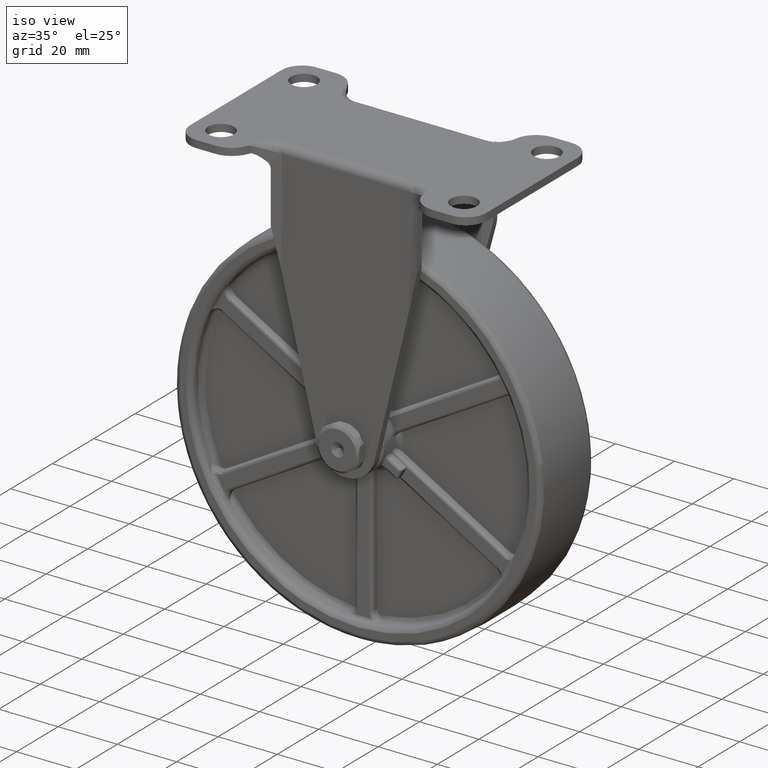
[diagram: clean part render]
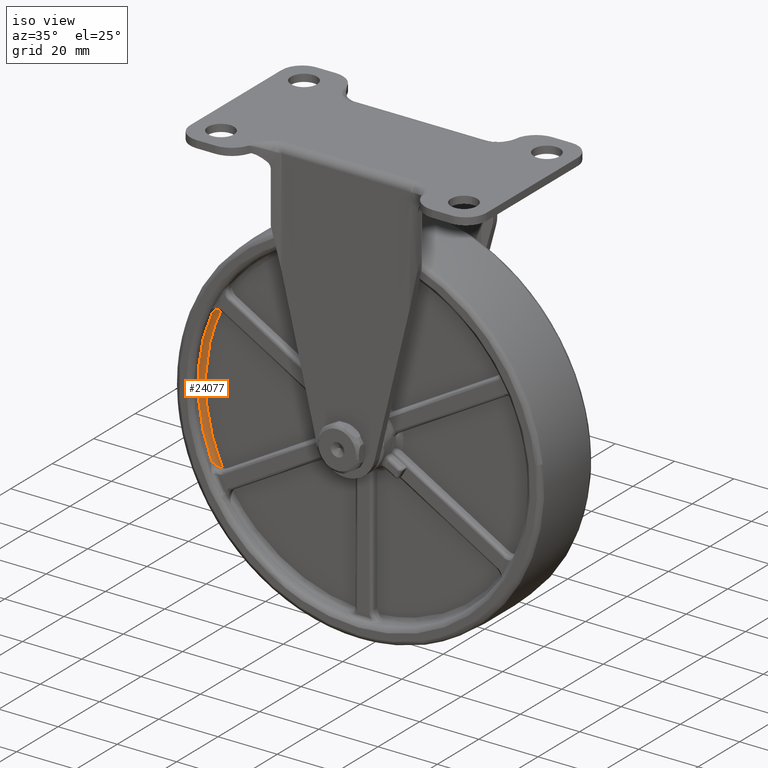
[diagram: same view with one face highlighted and labeled with its STEP entity id]
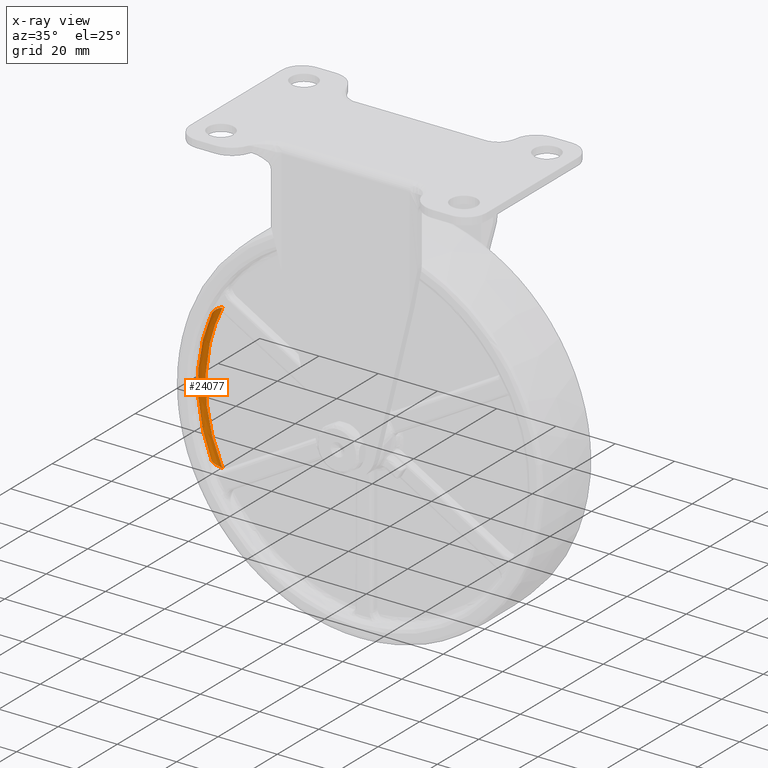
[diagram: x-ray of the same camera — body ghosted, the highlighted face saturated]
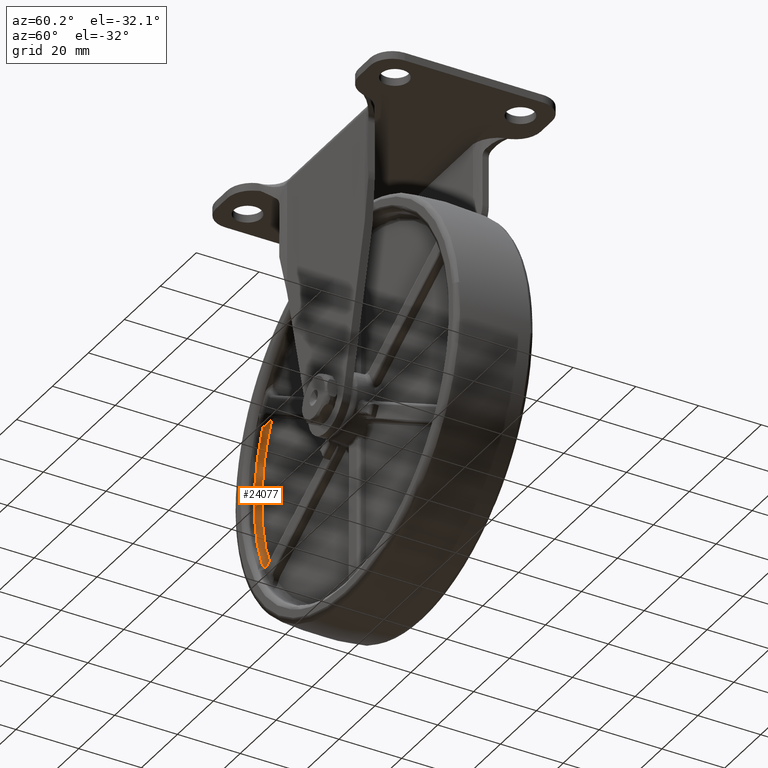
[diagram: same view with one face highlighted and labeled with its STEP entity id]
A machine part, iso view. The second image highlights one B-rep face of the part: STEP entity #24077.
The next image is the same camera in x-ray: the body ghosted, the highlighted face saturated — about 0% of this face is hidden behind the body in this view.
A second angle (auxiliary view) of the same face is appended — the face is thin or edge-on in the first view.
In plain terms, the highlighted face is a freeform B-spline surface patch.
Its self-contained STEP definition (entity closure, byte-faithful):
#15709=CARTESIAN_POINT('',(-90.796322213228194,-9.0,-106.087972984455210));
#15710=VERTEX_POINT('',#15709);
#16133=CARTESIAN_POINT('',(-90.796322081176200,-9.0,-60.912027073131704));
#16134=VERTEX_POINT('',#16133);
#20662=CARTESIAN_POINT('',(-88.310861819314198,-7.500000000000000,-107.877089859118600));
#20663=VERTEX_POINT('',#20662);
#20664=CARTESIAN_POINT('',(-90.796322213228194,-9.0,-106.087972984455210));
#20665=CARTESIAN_POINT('',(-90.790214386098697,-8.989430638078790,-106.101978630175590));
#20666=CARTESIAN_POINT('',(-90.783854135441004,-8.978717534419745,-106.116264808379300));
#20667=CARTESIAN_POINT('',(-90.771017751103813,-8.957385158907574,-106.144499184294900));
#20668=CARTESIAN_POINT('',(-90.751454383202585,-8.925420791217894,-106.186658321569200));
#20669=CARTESIAN_POINT('',(-90.703648052744384,-8.851106633387415,-106.283709172713000));
#20670=CARTESIAN_POINT('',(-90.658992474191393,-8.787909527814792,-106.364678902751610));
#20671=CARTESIAN_POINT('',(-90.564771653885543,-8.662286131042738,-106.523743059767300));
#20672=CARTESIAN_POINT('',(-90.495437712451604,-8.579557503229442,-106.625964700927300));
#20673=CARTESIAN_POINT('',(-90.343109253893090,-8.416816225905670,-106.822871117446400));
#20674=CARTESIAN_POINT('',(-90.260126567994845,-8.336795824460831,-106.917558040951700));
#20675=CARTESIAN_POINT('',(-90.124221552919565,-8.219541917490274,-107.053690450571000));
#20676=CARTESIAN_POINT('',(-90.076838703072184,-8.180800128691617,-107.098220419191510));
#20677=CARTESIAN_POINT('',(-89.979011157008372,-8.105255391290138,-107.184278670440190));
#20678=CARTESIAN_POINT('',(-89.928541855976761,-8.068414301043795,-107.225854220104300));
#20679=CARTESIAN_POINT('',(-89.772259019540030,-7.960963888554024,-107.346164396013610));
#20680=CARTESIAN_POINT('',(-89.661620341295929,-7.893380301906179,-107.420513483885300));
#20681=CARTESIAN_POINT('',(-89.484430894931791,-7.799845319267138,-107.522547103597400));
#20682=CARTESIAN_POINT('',(-89.423485201055186,-7.769983475608734,-107.554969743312500));
#20683=CARTESIAN_POINT('',(-89.297382655385860,-7.713369418804637,-107.616409826788700));
#20684=CARTESIAN_POINT('',(-89.232715087489311,-7.686851787334689,-107.645173132801400));
#20685=CARTESIAN_POINT('',(-89.034981183573578,-7.613943916319843,-107.724778038975700));
#20686=CARTESIAN_POINT('',(-88.897678472606074,-7.573789775270244,-107.769278204230900));
#20687=CARTESIAN_POINT('',(-88.681607819250871,-7.530824971785337,-107.821690424599890));
#20688=CARTESIAN_POINT('',(-88.607744513967134,-7.519451612069217,-107.836737574967700));
#20689=CARTESIAN_POINT('',(-88.459981110609036,-7.504092226151697,-107.861069109101900));
#20690=CARTESIAN_POINT('',(-88.385654146908621,-7.499999999997898,-107.870471619474900));
#20691=CARTESIAN_POINT('',(-88.310861819314198,-7.500000000000000,-107.877089859118600));
#20692=B_SPLINE_CURVE_WITH_KNOTS('',3,(#20664,#20665,#20666,#20667,#20668,#20669,#20670,#20671,#20672,#20673,#20674,#20675,#20676,#20677,#20678,#20679,#20680,#20681,#20682,#20683,#20684,#20685,#20686,#20687,#20688,#20689,#20690,#20691),.UNSPECIFIED.,.F.,.U.,(4,2,1,1,2,2,2,2,2,2,2,2,2,2,4),(0.0,0.015624999999997,0.031249999999994,0.062499999999991,0.124999999999985,0.249999999999978,0.374999999999970,0.437499999999970,0.499999999999970,0.624999999999968,0.687499999999970,0.749999999999972,0.874999999999986,0.937499999999993,1.0),.UNSPECIFIED.);
#20693=EDGE_CURVE('',#15710,#20663,#20692,.T.);
#20867=CARTESIAN_POINT('',(-88.310861819314198,-7.500000000000000,-59.122910140881501));
#20868=VERTEX_POINT('',#20867);
#20869=CARTESIAN_POINT('',(-88.310861819314198,-7.500000000000000,-59.122910140881501));
#20870=CARTESIAN_POINT('',(-88.385654146908664,-7.499999999997901,-59.129528380525102));
#20871=CARTESIAN_POINT('',(-88.459981110609050,-7.504092226151701,-59.138930890898152));
#20872=CARTESIAN_POINT('',(-88.607744513967205,-7.519451612069226,-59.163262425032279));
#20873=CARTESIAN_POINT('',(-88.681607819250956,-7.530824971785357,-59.178309575400107));
#20874=CARTESIAN_POINT('',(-88.897678472606088,-7.573789775270259,-59.230721795769071));
#20875=CARTESIAN_POINT('',(-89.034981183573592,-7.613943916319868,-59.275221961024272));
#20876=CARTESIAN_POINT('',(-89.232715087489467,-7.686851787334751,-59.354826867198661));
#20877=CARTESIAN_POINT('',(-89.297382655386130,-7.713369418804731,-59.383590173211338));
#20878=CARTESIAN_POINT('',(-89.423485201055357,-7.769983475608809,-59.445030256687573));
#20879=CARTESIAN_POINT('',(-89.484430894931918,-7.799845319267211,-59.477452896402689));
#20880=CARTESIAN_POINT('',(-89.661620341296029,-7.893380301906235,-59.579486516114791));
#20881=CARTESIAN_POINT('',(-89.772259019540144,-7.960963888554077,-59.653835603986430));
#20882=CARTESIAN_POINT('',(-89.928541855976832,-8.068414301043854,-59.774145779895747));
#20883=CARTESIAN_POINT('',(-89.979011157008429,-8.105255391290184,-59.815721329559842));
#20884=CARTESIAN_POINT('',(-90.076838703072227,-8.180800128691677,-59.901779580808594));
#20885=CARTESIAN_POINT('',(-90.124221552919593,-8.219541917490364,-59.946309549429103));
#20886=CARTESIAN_POINT('',(-90.260126567994902,-8.336795824460914,-60.082441959048310));
#20887=CARTESIAN_POINT('',(-90.343109253893090,-8.416816225905741,-60.177128882553653));
#20888=CARTESIAN_POINT('',(-90.495437712451576,-8.579557503229509,-60.374035299072673));
#20889=CARTESIAN_POINT('',(-90.564771653885572,-8.662286131042785,-60.476256940232737));
#20890=CARTESIAN_POINT('',(-90.658992474191379,-8.787909527814852,-60.635321097248372));
#20891=CARTESIAN_POINT('',(-90.703648052744398,-8.851106633387463,-60.716290827287018));
#20892=CARTESIAN_POINT('',(-90.751454383202557,-8.925420791218084,-60.813341678430660));
#20893=CARTESIAN_POINT('',(-90.771017751103784,-8.957385158907728,-60.855500815704993));
#20894=CARTESIAN_POINT('',(-90.783854135440961,-8.978717534420055,-60.883735191620502));
#20895=CARTESIAN_POINT('',(-90.790214386098071,-8.989430638081473,-60.898021369822722));
#20896=CARTESIAN_POINT('',(-90.796322081176200,-9.0,-60.912027073131704));
#20897=B_SPLINE_CURVE_WITH_KNOTS('',3,(#20869,#20870,#20871,#20872,#20873,#20874,#20875,#20876,#20877,#20878,#20879,#20880,#20881,#20882,#20883,#20884,#20885,#20886,#20887,#20888,#20889,#20890,#20891,#20892,#20893,#20894,#20895,#20896),.UNSPECIFIED.,.F.,.U.,(4,2,2,2,2,2,2,2,2,2,2,1,1,2,4),(0.0,0.062500000000002,0.125000000000004,0.250000000000019,0.312500000000022,0.375000000000024,0.500000000000030,0.562500000000029,0.625000000000028,0.750000000000018,0.875000000000009,0.937500000000004,0.968750000000002,0.984375000000001,1.0),.UNSPECIFIED.);
#20898=EDGE_CURVE('',#20868,#16134,#20897,.T.);
#23927=CARTESIAN_POINT('',(-90.796322213228109,-9.0,-106.087972984455210));
#23928=CARTESIAN_POINT('',(-100.646761428701480,-9.0,-83.500000000000043));
#23929=CARTESIAN_POINT('',(-90.796322081176200,-9.0,-60.912027073131704));
#23937=(BOUNDED_CURVE()B_SPLINE_CURVE(2,(#23927,#23928,#23929),.UNSPECIFIED.,.F.,.U.)CURVE()GEOMETRIC_REPRESENTATION_ITEM()QUASI_UNIFORM_CURVE()RATIONAL_B_SPLINE_CURVE((1.0,0.916630552690986,1.0))REPRESENTATION_ITEM(''));
#23938=EDGE_CURVE('',#15710,#16134,#23937,.T.);
#24042=CARTESIAN_POINT('',(-88.500827077746351,-9.104305733299849,-110.745794152862300));
#24043=CARTESIAN_POINT('',(-103.497208434289600,-9.104305733299849,-83.500000686269587));
#24044=CARTESIAN_POINT('',(-88.500827657553089,-9.104305733299848,-56.254206900544858));
#24045=CARTESIAN_POINT('',(-88.605899452338790,-7.383692280411306,-110.803627131790140));
#24046=CARTESIAN_POINT('',(-103.634112709325860,-7.383692280411308,-83.500000687726256));
#24047=CARTESIAN_POINT('',(-88.605900033376244,-7.383692280411307,-56.196373923853017));
#24048=CARTESIAN_POINT('',(-87.098532296548328,-7.503631071947254,-109.973955838117650));
#24049=CARTESIAN_POINT('',(-101.670085452138340,-7.503631071947257,-83.500000666828441));
#24050=CARTESIAN_POINT('',(-87.098532859929861,-7.503631071947254,-57.026045185447877));
#24058=(BOUNDED_SURFACE()B_SPLINE_SURFACE(2,2,((#24042,#24045,#24048),(#24043,#24046,#24049),(#24044,#24047,#24050)),.UNSPECIFIED.,.F.,.F.,.U.)B_SPLINE_SURFACE_WITH_KNOTS((3,3),(3,3),(0.0,58.091398822259883),(0.0,2.733563038811525),.UNSPECIFIED.)GEOMETRIC_REPRESENTATION_ITEM()RATIONAL_B_SPLINE_SURFACE(((0.855981174892898,0.561715977481085,0.855981606095247),(0.749894178915127,0.492099071886004,0.749894556675925),(0.855981170210987,0.561715974408700,0.855981601413334)))REPRESENTATION_ITEM('')SURFACE());
#24059=ORIENTED_EDGE('',*,*,#23938,.F.);
#24060=ORIENTED_EDGE('',*,*,#20693,.T.);
#24061=CARTESIAN_POINT('',(-88.310861819314056,-7.500000000000000,-107.877089859118500));
#24062=CARTESIAN_POINT('',(-100.361807352916270,-7.500000000000000,-83.500000000000085));
#24063=CARTESIAN_POINT('',(-88.310861819314113,-7.500000000000000,-59.122910140881572));
#24071=(BOUNDED_CURVE()B_SPLINE_CURVE(2,(#24061,#24062,#24063),.UNSPECIFIED.,.F.,.U.)CURVE()GEOMETRIC_REPRESENTATION_ITEM()QUASI_UNIFORM_CURVE()RATIONAL_B_SPLINE_CURVE((1.0,0.896442060182990,1.0))REPRESENTATION_ITEM(''));
#24072=EDGE_CURVE('',#20663,#20868,#24071,.T.);
#24073=ORIENTED_EDGE('',*,*,#24072,.T.);
#24074=ORIENTED_EDGE('',*,*,#20898,.T.);
#24075=EDGE_LOOP('',(#24059,#24060,#24073,#24074));
#24076=FACE_OUTER_BOUND('',#24075,.T.);
#24077=ADVANCED_FACE('',(#24076),#24058,.F.);